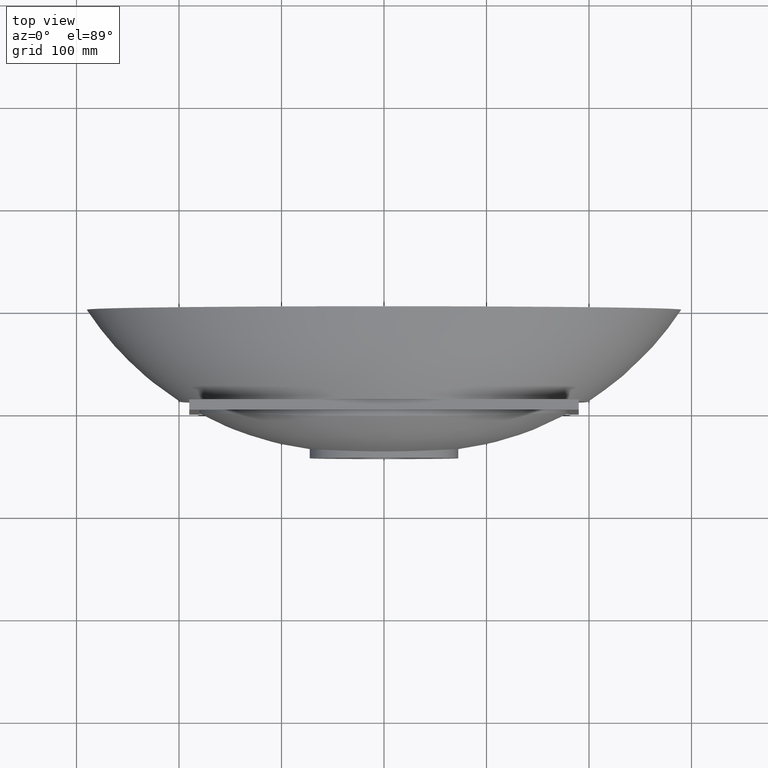
[diagram: clean part render]
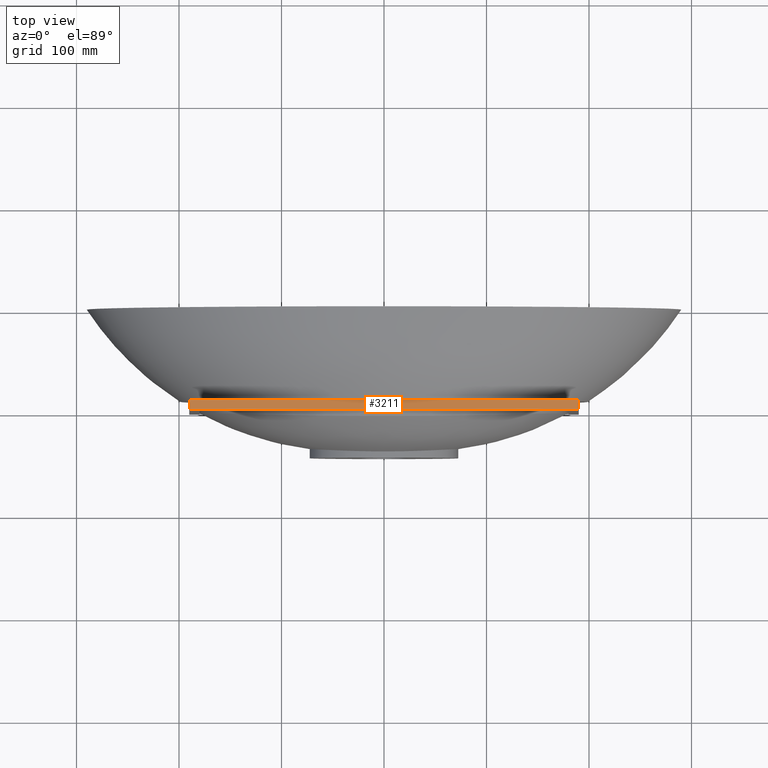
[diagram: same view with one face highlighted and labeled with its STEP entity id]
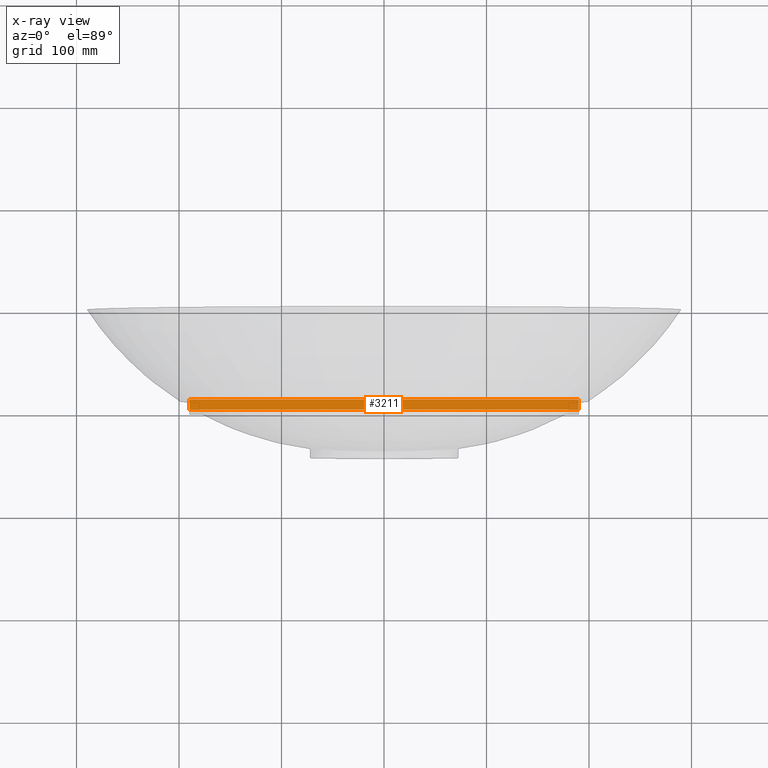
[diagram: x-ray of the same camera — body ghosted, the highlighted face saturated]
A machine part, top view. The second image highlights one B-rep face of the part: STEP entity #3211.
The next image is the same camera in x-ray: the body ghosted, the highlighted face saturated — about 0% of this face is hidden behind the body in this view.
In plain terms, the highlighted planar face has unit normal (0, 0, 1).
Its self-contained STEP definition (entity closure, byte-faithful):
#60 = EDGE_LOOP ( 'NONE', ( #3272, #379, #1012, #2779 ) ) ;
#372 = VECTOR ( 'NONE', #396, 1000.000000000000000 ) ;
#379 = ORIENTED_EDGE ( 'NONE', *, *, #2899, .F. ) ;
#396 = DIRECTION ( 'NONE',  ( 1.472423135496076200E-015, 1.000000000000000000, -7.069086911266522500E-029 ) ) ;
#399 = CARTESIAN_POINT ( 'NONE',  ( 189.9999999999997700, -100.0000000000005500, 142.5000000000000000 ) ) ;
#443 = DIRECTION ( 'NONE',  ( 0.0000000000000000000, -1.000000000000000000, 7.069086911266522500E-029 ) ) ;
#447 = DIRECTION ( 'NONE',  ( 1.032666191047950700E-043, 7.069086911266522500E-029, 1.000000000000000000 ) ) ;
#457 = PLANE ( 'NONE',  #2299 ) ;
#471 = VERTEX_POINT ( 'NONE', #3703 ) ;
#519 = FACE_OUTER_BOUND ( 'NONE', #60, .T. ) ;
#671 = LINE ( 'NONE', #2098, #2691 ) ;
#716 = EDGE_CURVE ( 'NONE', #1868, #2282, #3556, .T. ) ;
#819 = VERTEX_POINT ( 'NONE', #2816 ) ;
#1012 = ORIENTED_EDGE ( 'NONE', *, *, #716, .T. ) ;
#1021 = CARTESIAN_POINT ( 'NONE',  ( -190.0000000000000900, -100.0000000000000000, 142.5000000000000000 ) ) ;
#1564 = LINE ( 'NONE', #399, #372 ) ;
#1669 = VECTOR ( 'NONE', #2143, 1000.000000000000000 ) ;
#1769 = VECTOR ( 'NONE', #3090, 1000.000000000000000 ) ;
#1868 = VERTEX_POINT ( 'NONE', #2513 ) ;
#2098 = CARTESIAN_POINT ( 'NONE',  ( -190.0000000000000600, -90.00000000000001400, 142.5000000000000000 ) ) ;
#2116 = DIRECTION ( 'NONE',  ( 1.000000000000000000, -1.460819769243627300E-015, 0.0000000000000000000 ) ) ;
#2143 = DIRECTION ( 'NONE',  ( 1.472423135496076200E-015, 1.000000000000000000, -7.069086911266522500E-029 ) ) ;
#2178 = CARTESIAN_POINT ( 'NONE',  ( -190.0000000000000900, -100.0000000000000000, 142.5000000000000000 ) ) ;
#2282 = VERTEX_POINT ( 'NONE', #2829 ) ;
#2299 = AXIS2_PLACEMENT_3D ( 'NONE', #1021, #447, #443 ) ;
#2513 = CARTESIAN_POINT ( 'NONE',  ( -190.0000000000000900, -100.0000000000000000, 142.5000000000000000 ) ) ;
#2691 = VECTOR ( 'NONE', #2116, 1000.000000000000000 ) ;
#2779 = ORIENTED_EDGE ( 'NONE', *, *, #3254, .T. ) ;
#2816 = CARTESIAN_POINT ( 'NONE',  ( 189.9999999999998000, -90.00000000000056800, 142.5000000000000000 ) ) ;
#2829 = CARTESIAN_POINT ( 'NONE',  ( 189.9999999999997700, -100.0000000000005500, 142.5000000000000000 ) ) ;
#2899 = EDGE_CURVE ( 'NONE', #1868, #471, #3109, .T. ) ;
#3090 = DIRECTION ( 'NONE',  ( 1.000000000000000000, -1.460819769243627300E-015, 0.0000000000000000000 ) ) ;
#3109 = LINE ( 'NONE', #2178, #1669 ) ;
#3125 = EDGE_CURVE ( 'NONE', #471, #819, #671, .T. ) ;
#3211 = ADVANCED_FACE ( 'NONE', ( #519 ), #457, .T. ) ;
#3254 = EDGE_CURVE ( 'NONE', #2282, #819, #1564, .T. ) ;
#3272 = ORIENTED_EDGE ( 'NONE', *, *, #3125, .F. ) ;
#3556 = LINE ( 'NONE', #3657, #1769 ) ;
#3657 = CARTESIAN_POINT ( 'NONE',  ( -190.0000000000000900, -100.0000000000000000, 142.5000000000000000 ) ) ;
#3703 = CARTESIAN_POINT ( 'NONE',  ( -190.0000000000000600, -90.00000000000001400, 142.5000000000000000 ) ) ;